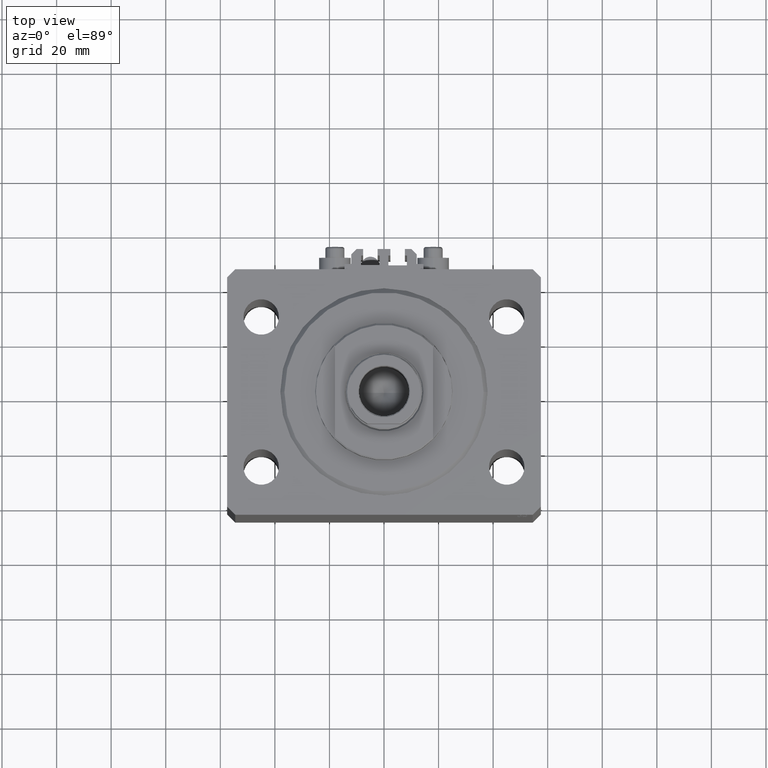
[diagram: clean part render]
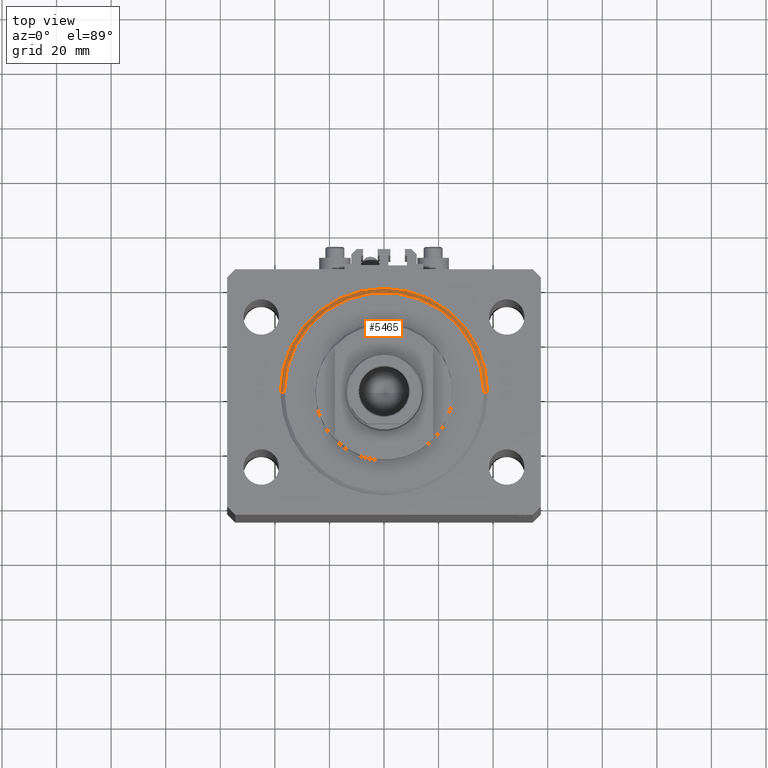
[diagram: same view with one face highlighted and labeled with its STEP entity id]
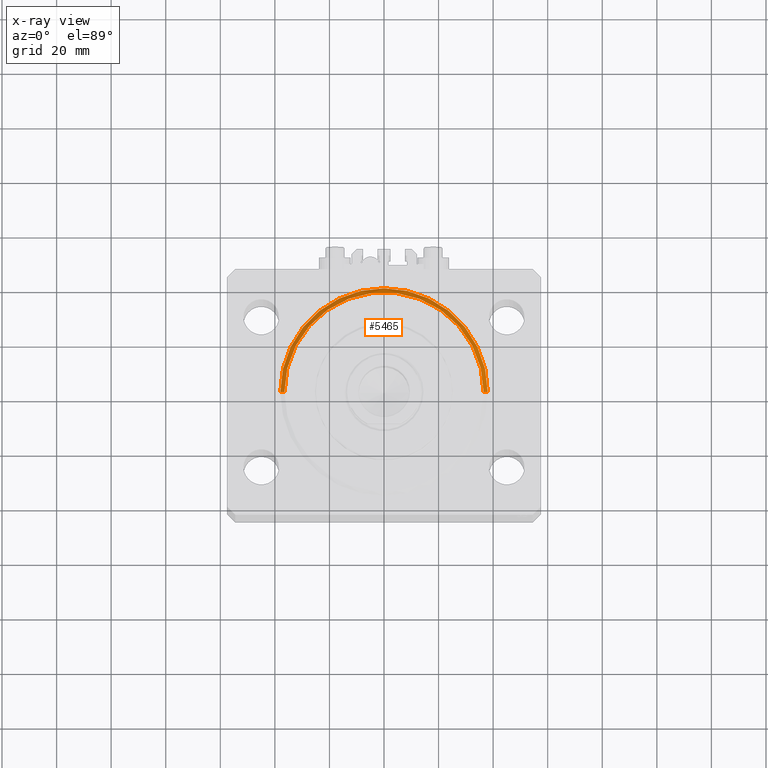
[diagram: x-ray of the same camera — body ghosted, the highlighted face saturated]
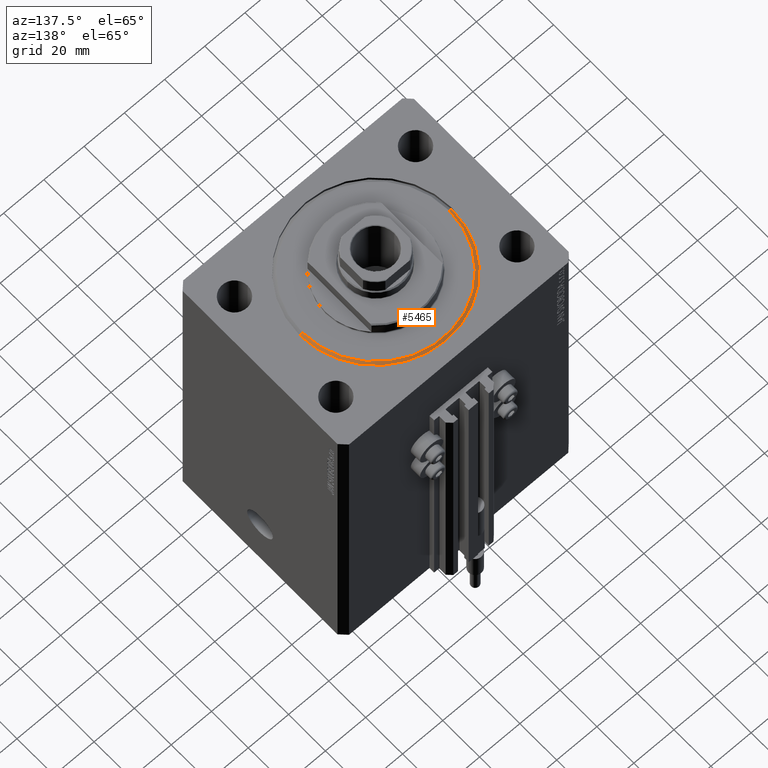
[diagram: same view with one face highlighted and labeled with its STEP entity id]
A machine part, top view. The second image highlights one B-rep face of the part: STEP entity #5465.
The next image is the same camera in x-ray: the body ghosted, the highlighted face saturated — about 0% of this face is hidden behind the body in this view.
A second angle (auxiliary view) of the same face is appended — the face is thin or edge-on in the first view.
In plain terms, the highlighted conical surface has half-angle 45 deg.
Its self-contained STEP definition (entity closure, byte-faithful):
#1372 = AXIS2_PLACEMENT_3D ( 'NONE', #13827, #6289, #32114 ) ;
#3631 = VERTEX_POINT ( 'NONE', #37639 ) ;
#5465 = ADVANCED_FACE ( 'NONE', ( #9222 ), #42539, .T. ) ;
#6289 = DIRECTION ( 'NONE',  ( -0.000000000000000000, -0.000000000000000000, 1.000000000000000000 ) ) ;
#9222 = FACE_OUTER_BOUND ( 'NONE', #45747, .T. ) ;
#9549 = DIRECTION ( 'NONE',  ( 1.000000000000000000, 0.000000000000000000, 0.000000000000000000 ) ) ;
#11089 = DIRECTION ( 'NONE',  ( -0.000000000000000000, -0.000000000000000000, -1.000000000000000000 ) ) ;
#12599 = CARTESIAN_POINT ( 'NONE',  ( 36.50000000000000000, 0.000000000000000000, 0.000000000000000000 ) ) ;
#13827 = CARTESIAN_POINT ( 'NONE',  ( 0.000000000000000000, 0.000000000000000000, 1.499999999999994449 ) ) ;
#14380 = VERTEX_POINT ( 'NONE', #41512 ) ;
#17333 = DIRECTION ( 'NONE',  ( -0.000000000000000000, -0.000000000000000000, 1.000000000000000000 ) ) ;
#19578 = VERTEX_POINT ( 'NONE', #12599 ) ;
#21172 = AXIS2_PLACEMENT_3D ( 'NONE', #21225, #17333, #9549 ) ;
#21225 = CARTESIAN_POINT ( 'NONE',  ( 0.000000000000000000, 0.000000000000000000, 1.499999999999994449 ) ) ;
#21546 = CIRCLE ( 'NONE', #27792, 36.50000000000000000 ) ;
#25580 = EDGE_CURVE ( 'NONE', #29743, #14380, #45279, .T. ) ;
#25661 = CARTESIAN_POINT ( 'NONE',  ( -38.00000000000000000, 4.653657836759941941E-15, 1.499999999999994449 ) ) ;
#26248 = VECTOR ( 'NONE', #40540, 1000.000000000000114 ) ;
#26620 = LINE ( 'NONE', #25661, #31796 ) ;
#27792 = AXIS2_PLACEMENT_3D ( 'NONE', #36173, #11089, #40782 ) ;
#28665 = ORIENTED_EDGE ( 'NONE', *, *, #37629, .T. ) ;
#29569 = DIRECTION ( 'NONE',  ( -0.7071067811865491270, 8.659560562354953812E-17, 0.7071067811865459074 ) ) ;
#29743 = VERTEX_POINT ( 'NONE', #46002 ) ;
#31796 = VECTOR ( 'NONE', #29569, 1000.000000000000114 ) ;
#32114 = DIRECTION ( 'NONE',  ( 1.000000000000000000, 0.000000000000000000, 0.000000000000000000 ) ) ;
#34091 = EDGE_CURVE ( 'NONE', #19578, #29743, #47606, .T. ) ;
#34108 = EDGE_CURVE ( 'NONE', #3631, #19578, #21546, .T. ) ;
#34565 = ORIENTED_EDGE ( 'NONE', *, *, #34108, .F. ) ;
#36173 = CARTESIAN_POINT ( 'NONE',  ( 0.000000000000000000, 0.000000000000000000, 0.000000000000000000 ) ) ;
#37629 = EDGE_CURVE ( 'NONE', #3631, #14380, #26620, .T. ) ;
#37639 = CARTESIAN_POINT ( 'NONE',  ( -36.50000000000000000, 4.561809326823889791E-15, 0.000000000000000000 ) ) ;
#38442 = ORIENTED_EDGE ( 'NONE', *, *, #25580, .F. ) ;
#40540 = DIRECTION ( 'NONE',  ( 0.7071067811865491270, 0.000000000000000000, 0.7071067811865459074 ) ) ;
#40782 = DIRECTION ( 'NONE',  ( 1.000000000000000000, 0.000000000000000000, 0.000000000000000000 ) ) ;
#41512 = CARTESIAN_POINT ( 'NONE',  ( -38.00000000000000000, 0.000000000000000000, 1.499999999999994449 ) ) ;
#42415 = ORIENTED_EDGE ( 'NONE', *, *, #34091, .F. ) ;
#42539 = CONICAL_SURFACE ( 'NONE', #1372, 38.00000000000000000, 0.7853981633974506105 ) ;
#44431 = CARTESIAN_POINT ( 'NONE',  ( 38.00000000000000000, 0.000000000000000000, 1.499999999999994449 ) ) ;
#45279 = CIRCLE ( 'NONE', #21172, 38.00000000000000000 ) ;
#45747 = EDGE_LOOP ( 'NONE', ( #34565, #28665, #38442, #42415 ) ) ;
#46002 = CARTESIAN_POINT ( 'NONE',  ( 38.00000000000000000, 4.653657836759941941E-15, 1.499999999999994449 ) ) ;
#47606 = LINE ( 'NONE', #44431, #26248 ) ;